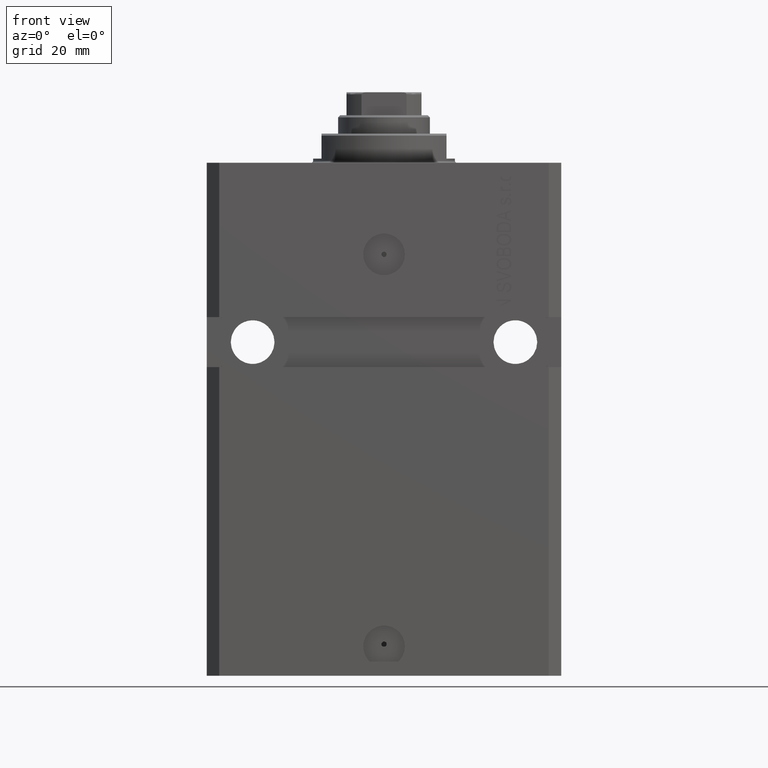
[diagram: clean part render]
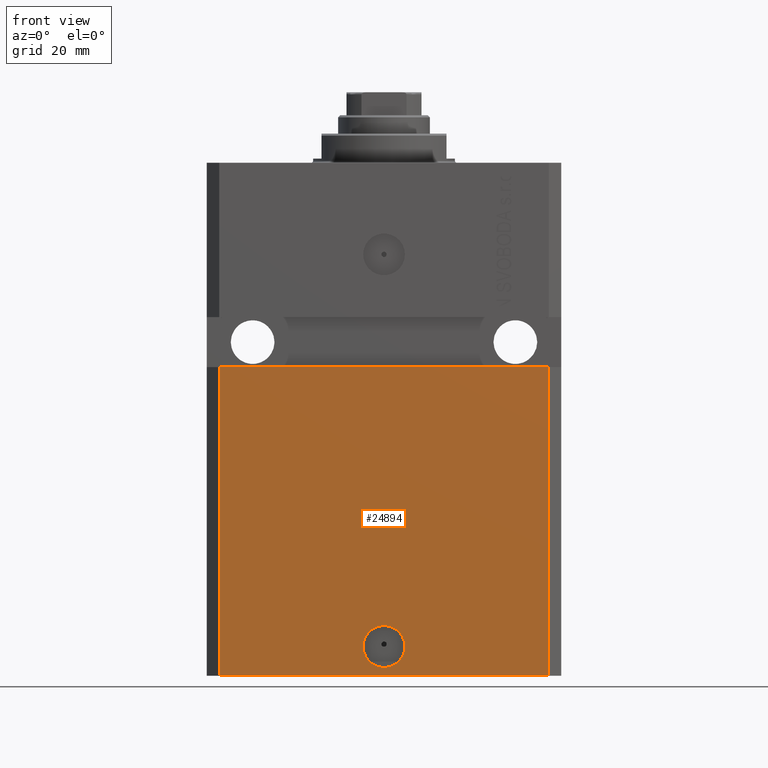
[diagram: same view with one face highlighted and labeled with its STEP entity id]
A machine part, front view. The second image highlights one B-rep face of the part: STEP entity #24894.
In plain terms, the highlighted planar face has unit normal (0, -1, 0).
Its self-contained STEP definition (entity closure, byte-faithful):
#636 = EDGE_CURVE ( 'NONE', #27634, #9708, #6094, .T. ) ;
#940 = DIRECTION ( 'NONE',  ( 1.000000000000000000, 1.632680918566406300E-16, 1.632680918566406300E-16 ) ) ;
#2174 = DIRECTION ( 'NONE',  ( 0.000000000000000000, 0.000000000000000000, 1.000000000000000000 ) ) ;
#2928 = EDGE_CURVE ( 'NONE', #9708, #9732, #13949, .T. ) ;
#5172 = EDGE_CURVE ( 'NONE', #36863, #9732, #21805, .T. ) ;
#5445 = ORIENTED_EDGE ( 'NONE', *, *, #15950, .F. ) ;
#6094 = LINE ( 'NONE', #26981, #22724 ) ;
#6262 = AXIS2_PLACEMENT_3D ( 'NONE', #25858, #8614, #42593 ) ;
#8614 = DIRECTION ( 'NONE',  ( 1.176083712526788232E-16, -1.000000000000000000, 0.000000000000000000 ) ) ;
#8671 = DIRECTION ( 'NONE',  ( 1.000000000000000000, 0.000000000000000000, 0.000000000000000000 ) ) ;
#8909 = PLANE ( 'NONE',  #28304 ) ;
#8980 = VECTOR ( 'NONE', #2174, 1000.000000000000000 ) ;
#9580 = FACE_OUTER_BOUND ( 'NONE', #31536, .T. ) ;
#9708 = VERTEX_POINT ( 'NONE', #32941 ) ;
#9732 = VERTEX_POINT ( 'NONE', #25937 ) ;
#10071 = DIRECTION ( 'NONE',  ( 0.000000000000000000, 0.000000000000000000, 1.000000000000000000 ) ) ;
#11611 = VERTEX_POINT ( 'NONE', #24522 ) ;
#11650 = EDGE_CURVE ( 'NONE', #11611, #28885, #40259, .T. ) ;
#12772 = FACE_BOUND ( 'NONE', #44270, .T. ) ;
#13949 = LINE ( 'NONE', #41106, #31450 ) ;
#14170 = VECTOR ( 'NONE', #940, 1000.000000000000000 ) ;
#15220 = CARTESIAN_POINT ( 'NONE',  ( -42.50000000000000000, -31.50000000000000711, -48.99999999999999289 ) ) ;
#15950 = EDGE_CURVE ( 'NONE', #28885, #11611, #22305, .T. ) ;
#17085 = CARTESIAN_POINT ( 'NONE',  ( 5.000000000000006217, -31.50000000000000000, -115.9999999999999858 ) ) ;
#17975 = AXIS2_PLACEMENT_3D ( 'NONE', #39268, #32919, #8671 ) ;
#19441 = LINE ( 'NONE', #33230, #8980 ) ;
#21805 = LINE ( 'NONE', #15220, #14170 ) ;
#22305 = CIRCLE ( 'NONE', #17975, 5.000000000000006217 ) ;
#22724 = VECTOR ( 'NONE', #43729, 1000.000000000000000 ) ;
#24522 = CARTESIAN_POINT ( 'NONE',  ( -5.000000000000006217, -31.50000000000000000, -115.9999999999999858 ) ) ;
#24894 = ADVANCED_FACE ( 'NONE', ( #12772, #9580 ), #8909, .T. ) ;
#25858 = CARTESIAN_POINT ( 'NONE',  ( 0.000000000000000000, -31.50000000000000000, -115.9999999999999858 ) ) ;
#25937 = CARTESIAN_POINT ( 'NONE',  ( 39.50000000000001421, -31.49999999999999289, -48.99999999999997868 ) ) ;
#26981 = CARTESIAN_POINT ( 'NONE',  ( -39.50000000000000711, -31.50000000000000000, -123.0000000000000000 ) ) ;
#27364 = ORIENTED_EDGE ( 'NONE', *, *, #2928, .T. ) ;
#27634 = VERTEX_POINT ( 'NONE', #35451 ) ;
#28304 = AXIS2_PLACEMENT_3D ( 'NONE', #37232, #34050, #29757 ) ;
#28885 = VERTEX_POINT ( 'NONE', #17085 ) ;
#29757 = DIRECTION ( 'NONE',  ( 0.000000000000000000, -0.000000000000000000, -1.000000000000000000 ) ) ;
#29993 = ORIENTED_EDGE ( 'NONE', *, *, #11650, .F. ) ;
#30192 = ORIENTED_EDGE ( 'NONE', *, *, #5172, .F. ) ;
#31450 = VECTOR ( 'NONE', #10071, 1000.000000000000000 ) ;
#31536 = EDGE_LOOP ( 'NONE', ( #30192, #38065, #38501, #27364 ) ) ;
#32917 = CARTESIAN_POINT ( 'NONE',  ( -39.50000000000000000, -31.50000000000000711, -48.99999999999999289 ) ) ;
#32919 = DIRECTION ( 'NONE',  ( 1.176083712526788232E-16, -1.000000000000000000, 0.000000000000000000 ) ) ;
#32941 = CARTESIAN_POINT ( 'NONE',  ( 39.50000000000000711, -31.50000000000000000, -123.0000000000000000 ) ) ;
#33230 = CARTESIAN_POINT ( 'NONE',  ( -39.50000000000000711, -31.50000000000000000, -123.0000000000000000 ) ) ;
#34050 = DIRECTION ( 'NONE',  ( 0.000000000000000000, -1.000000000000000000, 0.000000000000000000 ) ) ;
#35451 = CARTESIAN_POINT ( 'NONE',  ( -39.50000000000000711, -31.50000000000000000, -123.0000000000000000 ) ) ;
#36863 = VERTEX_POINT ( 'NONE', #32917 ) ;
#37232 = CARTESIAN_POINT ( 'NONE',  ( -39.50000000000000711, -31.50000000000000000, -123.0000000000000000 ) ) ;
#38065 = ORIENTED_EDGE ( 'NONE', *, *, #42812, .F. ) ;
#38501 = ORIENTED_EDGE ( 'NONE', *, *, #636, .T. ) ;
#39268 = CARTESIAN_POINT ( 'NONE',  ( 0.000000000000000000, -31.50000000000000000, -115.9999999999999858 ) ) ;
#40259 = CIRCLE ( 'NONE', #6262, 5.000000000000006217 ) ;
#41106 = CARTESIAN_POINT ( 'NONE',  ( 39.50000000000000711, -31.50000000000000000, -123.0000000000000000 ) ) ;
#42593 = DIRECTION ( 'NONE',  ( 1.000000000000000000, 0.000000000000000000, 0.000000000000000000 ) ) ;
#42812 = EDGE_CURVE ( 'NONE', #27634, #36863, #19441, .T. ) ;
#43729 = DIRECTION ( 'NONE',  ( 1.000000000000000000, 0.000000000000000000, 0.000000000000000000 ) ) ;
#44270 = EDGE_LOOP ( 'NONE', ( #5445, #29993 ) ) ;